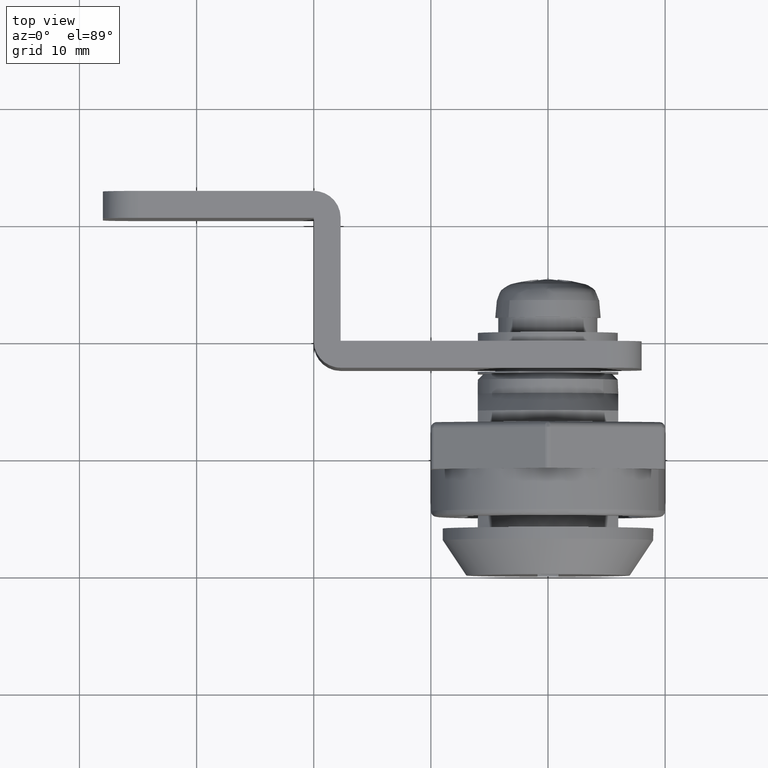
[diagram: clean part render]
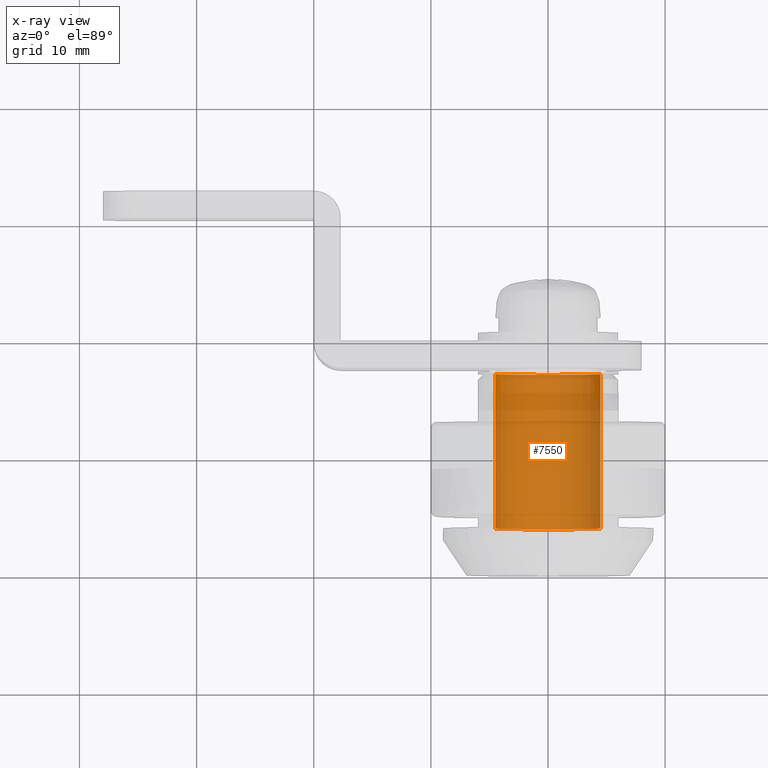
[diagram: x-ray — body ghosted, one internal face saturated and labeled with its STEP entity id]
A machine part, top view, then the same camera in x-ray: the body is ghosted and one INTERNAL B-rep face — a face not visible from any outside direction — is saturated and labeled: STEP entity #7550.
In plain terms, the highlighted face is a freeform B-spline surface patch.
Its self-contained STEP definition (entity closure, byte-faithful):
#7387=CARTESIAN_POINT('',(4.468542868632297,17.199999999999999,-0.531154055990756));
#7388=VERTEX_POINT('',#7387);
#7406=CARTESIAN_POINT('',(4.468542868632297,4.0,-0.531154055990756));
#7407=VERTEX_POINT('',#7406);
#7408=CARTESIAN_POINT('',(4.468542868632297,17.199999999999999,-0.531154055990756));
#7409=CARTESIAN_POINT('',(4.468542868632297,4.0,-0.531154055990756));
#7410=QUASI_UNIFORM_CURVE('',1,(#7408,#7409),.UNSPECIFIED.,.F.,.U.);
#7411=EDGE_CURVE('',#7388,#7407,#7410,.T.);
#7430=CARTESIAN_POINT('',(-4.491606840381607,3.999999999999999,0.274714381532366));
#7431=VERTEX_POINT('',#7430);
#7445=CARTESIAN_POINT('',(-4.491606843393639,17.199999999999982,0.274714332284625));
#7446=VERTEX_POINT('',#7445);
#7447=CARTESIAN_POINT('',(-4.491606843393639,17.199999999999982,0.274714332284625));
#7448=CARTESIAN_POINT('',(-4.491606840381607,3.999999999999999,0.274714381532366));
#7449=QUASI_UNIFORM_CURVE('',1,(#7447,#7448),.UNSPECIFIED.,.F.,.U.);
#7450=EDGE_CURVE('',#7446,#7431,#7449,.T.);
#7468=CARTESIAN_POINT('',(-4.491606592898400,17.530000000000001,0.274718427906856));
#7469=CARTESIAN_POINT('',(-4.766325020805256,17.530000000000001,-4.216888164991544));
#7470=CARTESIAN_POINT('',(-0.274718427906856,17.530000000000001,-4.491606592898400));
#7471=CARTESIAN_POINT('',(3.966945708777753,17.529999999999998,-4.751037885296373));
#7472=CARTESIAN_POINT('',(4.468542868636499,17.529999999999998,-0.531154055955413));
#7473=CARTESIAN_POINT('',(-4.491606592898400,3.661750000000000,0.274718427906856));
#7474=CARTESIAN_POINT('',(-4.766325020805256,3.661749999999999,-4.216888164991544));
#7475=CARTESIAN_POINT('',(-0.274718427906856,3.661750000000000,-4.491606592898400));
#7476=CARTESIAN_POINT('',(3.966945708777753,3.661750000000000,-4.751037885296373));
#7477=CARTESIAN_POINT('',(4.468542868636499,3.661750000000000,-0.531154055955413));
#7485=(BOUNDED_SURFACE()B_SPLINE_SURFACE(2,1,((#7468,#7473),(#7469,#7474),(#7470,#7475),(#7471,#7476),(#7472,#7477)),.UNSPECIFIED.,.F.,.F.,.U.)B_SPLINE_SURFACE_WITH_KNOTS((3,2,3),(2,2),(0.0,7.455844122715709,14.613454480522790),(0.0,13.868250000000000),.UNSPECIFIED.)GEOMETRIC_REPRESENTATION_ITEM()RATIONAL_B_SPLINE_SURFACE(((1.0,1.0),(0.707106781186548,0.707106781186548),(1.0,1.0),(0.718822509939086,0.718822509939086),(0.977505800795127,0.977505800795127)))REPRESENTATION_ITEM('')SURFACE());
#7486=CARTESIAN_POINT('',(0.0,17.199999999999999,-4.500000000000000));
#7487=VERTEX_POINT('',#7486);
#7488=CARTESIAN_POINT('',(0.0,17.199999999999999,-4.500000000000000));
#7489=CARTESIAN_POINT('',(3.996785366717487,17.199999999999996,-4.499999999999999));
#7490=CARTESIAN_POINT('',(4.468542868632297,17.200000000000003,-0.531154055990756));
#7498=(BOUNDED_CURVE()B_SPLINE_CURVE(2,(#7488,#7489,#7490),.UNSPECIFIED.,.F.,.U.)B_SPLINE_CURVE_WITH_KNOTS((3,3),(0.0,0.229562473512971),.UNSPECIFIED.)CURVE()GEOMETRIC_REPRESENTATION_ITEM()RATIONAL_B_SPLINE_CURVE((1.0,0.731050832856032,0.956026754182646))REPRESENTATION_ITEM(''));
#7499=EDGE_CURVE('',#7487,#7388,#7498,.T.);
#7500=ORIENTED_EDGE('',*,*,#7499,.F.);
#7501=CARTESIAN_POINT('',(-4.491606843393639,17.199999999999982,0.274714332284625));
#7502=CARTESIAN_POINT('',(-4.500000000000000,17.199999999999996,0.137485381290815));
#7503=CARTESIAN_POINT('',(-4.500000000000000,17.199999999999999,-2.878437E-016));
#7504=CARTESIAN_POINT('',(-4.500000000000000,17.200000000000006,-4.500000000000000));
#7505=CARTESIAN_POINT('',(0.0,17.199999999999999,-4.500000000000000));
#7513=(BOUNDED_CURVE()B_SPLINE_CURVE(2,(#7501,#7502,#7503,#7504,#7505),.UNSPECIFIED.,.F.,.U.)B_SPLINE_CURVE_WITH_KNOTS((3,2,3),(0.739333119576885,0.750000000000000,1.0),.UNSPECIFIED.)CURVE()GEOMETRIC_REPRESENTATION_ITEM()RATIONAL_B_SPLINE_CURVE((0.976072378872111,0.987502972232703,1.0,0.707106781186547,1.0))REPRESENTATION_ITEM(''));
#7514=EDGE_CURVE('',#7446,#7487,#7513,.T.);
#7515=ORIENTED_EDGE('',*,*,#7514,.F.);
#7516=ORIENTED_EDGE('',*,*,#7450,.T.);
#7517=CARTESIAN_POINT('',(0.0,4.0,-4.500000000000000));
#7518=VERTEX_POINT('',#7517);
#7519=CARTESIAN_POINT('',(-4.491606840381607,3.999999999999999,0.274714381532366));
#7520=CARTESIAN_POINT('',(-4.499999999999999,4.000000000000000,0.137485405983724));
#7521=CARTESIAN_POINT('',(-4.500000000000000,4.0,-2.878437E-016));
#7522=CARTESIAN_POINT('',(-4.500000000000000,4.0,-4.500000000000000));
#7523=CARTESIAN_POINT('',(0.0,4.0,-4.500000000000000));
#7531=(BOUNDED_CURVE()B_SPLINE_CURVE(2,(#7519,#7520,#7521,#7522,#7523),.UNSPECIFIED.,.F.,.U.)B_SPLINE_CURVE_WITH_KNOTS((3,2,3),(0.739333117685014,0.750000000000000,1.0),.UNSPECIFIED.)CURVE()GEOMETRIC_REPRESENTATION_ITEM()RATIONAL_B_SPLINE_CURVE((0.976072374817465,0.987502970016238,1.0,0.707106781186547,1.0))REPRESENTATION_ITEM(''));
#7532=EDGE_CURVE('',#7431,#7518,#7531,.T.);
#7533=ORIENTED_EDGE('',*,*,#7532,.T.);
#7534=CARTESIAN_POINT('',(0.0,4.0,-4.500000000000000));
#7535=CARTESIAN_POINT('',(3.996785366717487,4.000000000000001,-4.499999999999999));
#7536=CARTESIAN_POINT('',(4.468542868632297,4.000000000000000,-0.531154055990756));
#7544=(BOUNDED_CURVE()B_SPLINE_CURVE(2,(#7534,#7535,#7536),.UNSPECIFIED.,.F.,.U.)B_SPLINE_CURVE_WITH_KNOTS((3,3),(0.0,0.229562473512971),.UNSPECIFIED.)CURVE()GEOMETRIC_REPRESENTATION_ITEM()RATIONAL_B_SPLINE_CURVE((1.0,0.731050832856032,0.956026754182646))REPRESENTATION_ITEM(''));
#7545=EDGE_CURVE('',#7518,#7407,#7544,.T.);
#7546=ORIENTED_EDGE('',*,*,#7545,.T.);
#7547=ORIENTED_EDGE('',*,*,#7411,.F.);
#7548=EDGE_LOOP('',(#7500,#7515,#7516,#7533,#7546,#7547));
#7549=FACE_OUTER_BOUND('',#7548,.T.);
#7550=ADVANCED_FACE('',(#7549),#7485,.F.);